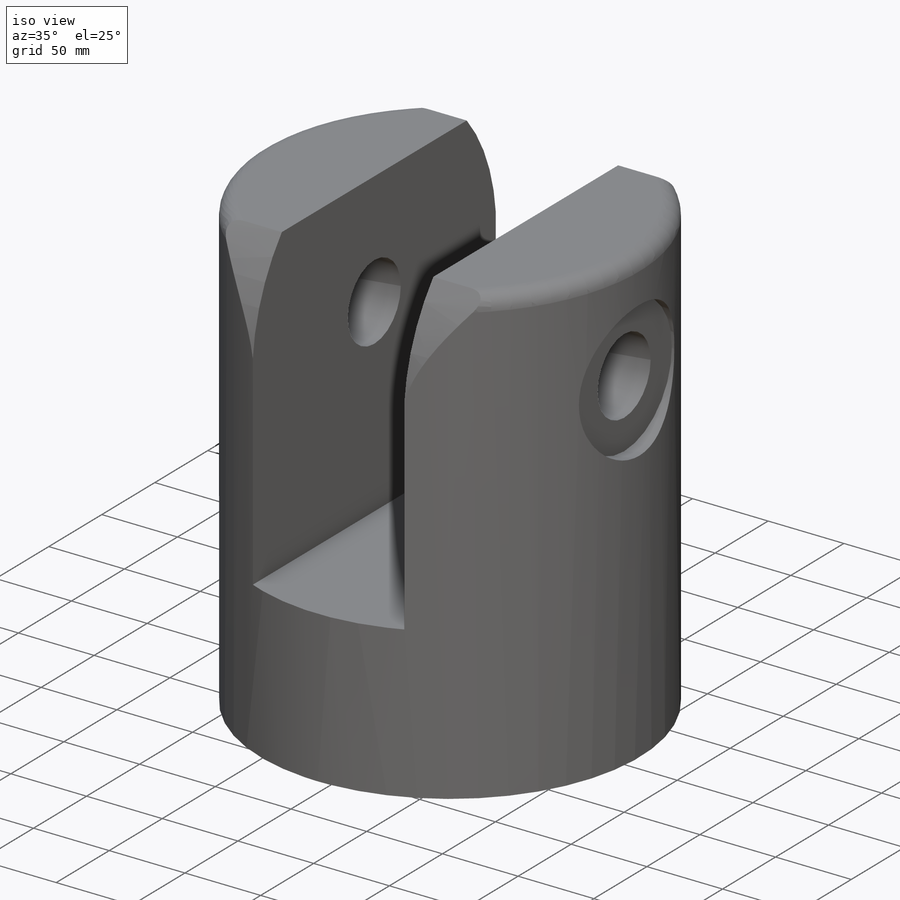
[diagram: iso view]
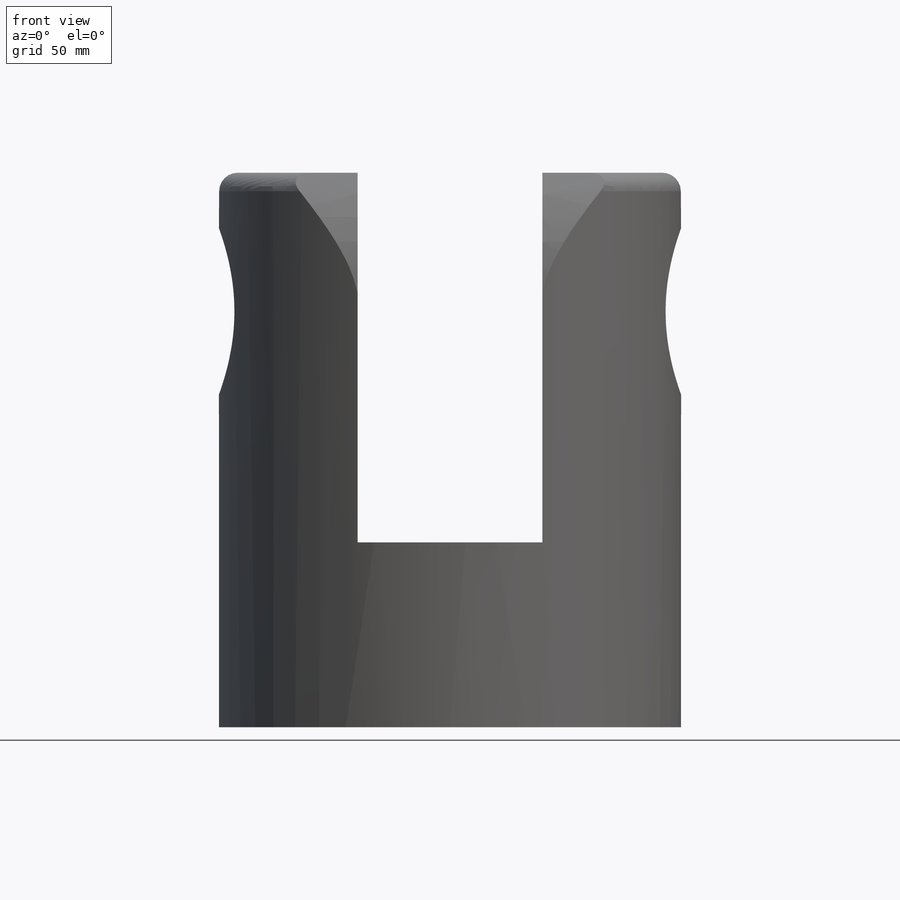
[diagram: front view]
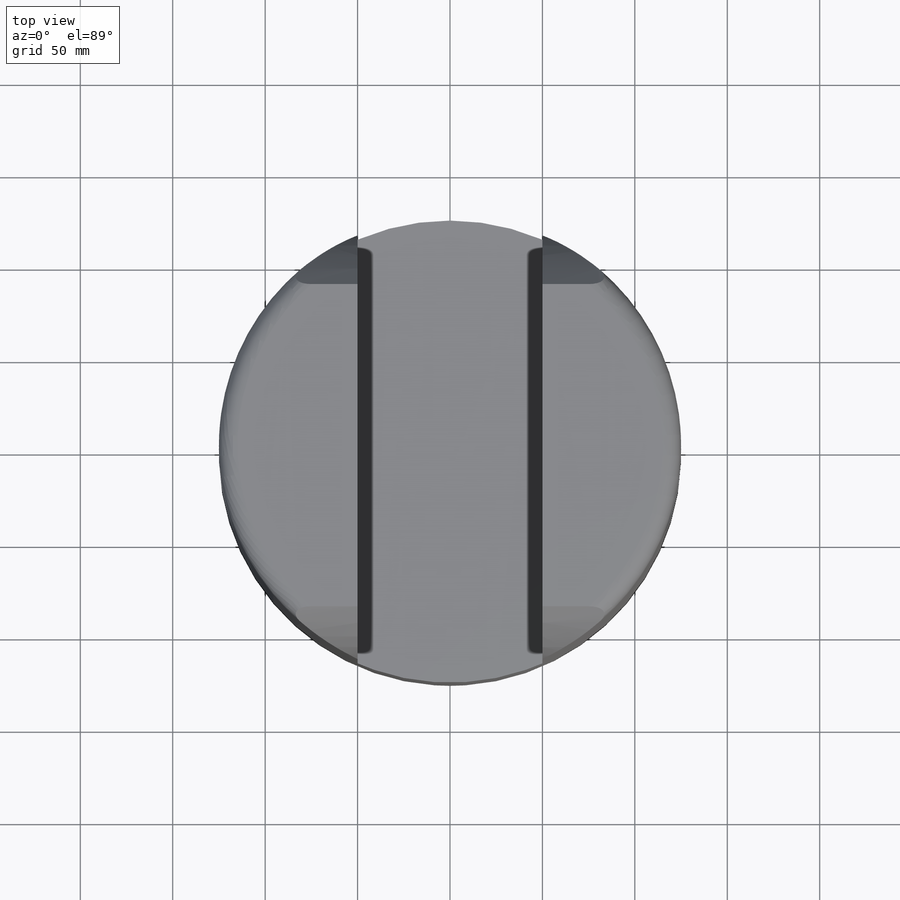
[diagram: top view]
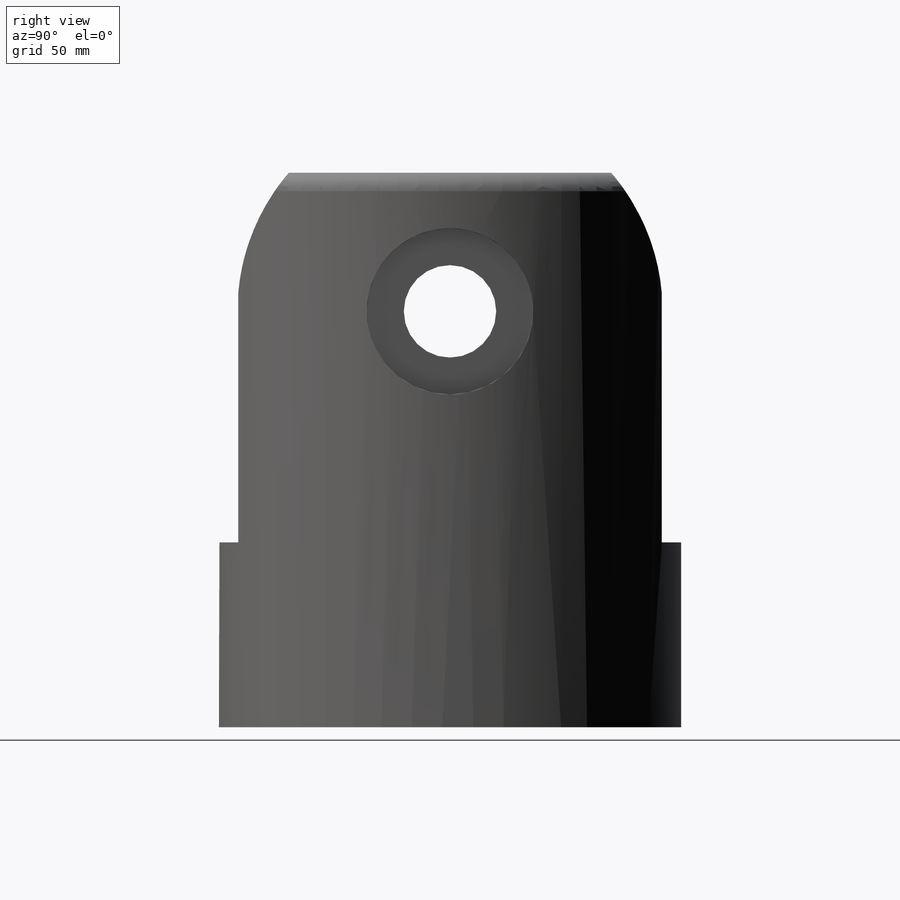
[diagram: right view]
SOLIDWORKS PART (.sldprt)
format: sldprt  version: not decoded by parser v0  size: 268,800 bytes
history: native  units: mm
features: sketch x7, cut_extrude x5, plane x4, material x1, extrude x1, fillet x1 (+13 scaffold rows collapsed)
feature tree (32):
  scaffold x13  (default folders/planes/origin — collapsed)
  material  "Material <not specified>"
  sketch  "Sketch1"  dims[D1=250.0mm]
  extrude  "Boss-Extrude1"  Depth=300mm
  sketch  "Sketch2"  dims[D1=100.0mm]
  cut_extrude  "Cut-Extrude1"  Depth=200mm
  sketch  "Sketch3"  dims[D2=60.0mm D1=75.0mm]
  sketch  "Sketch4"  dims[D1=100.0mm]
  cut_extrude  "Cut-Extrude3"  Depth=60mm
  plane  "Plane1"  Offset=75mm
  plane  "Plane2"  Offset=75mm
  sketch  "Sketch7"  dims[D2=50.0mm D1=75.0mm D3=90.0mm]
  cut_extrude  "Cut-Extrude6"  Depth=10mm
  fillet  "Fillet2"  Radius=10mm
  plane  "Plane3"  Offset=75mm
  sketch  "Sketch8"  dims[D1=20.0mm]
  cut_extrude  "Cut-Extrude7"  Depth=10mm
  plane  "Plane4"  Offset=75mm
  sketch  "Sketch10"  dims[D1=20.0mm]
  cut_extrude  "Cut-Extrude8"  Depth=10mm
decode coverage: 14 of 14 modeling features carry decoded parameters
note: suppression state not decoded; provenance and decode notes live in map.json
